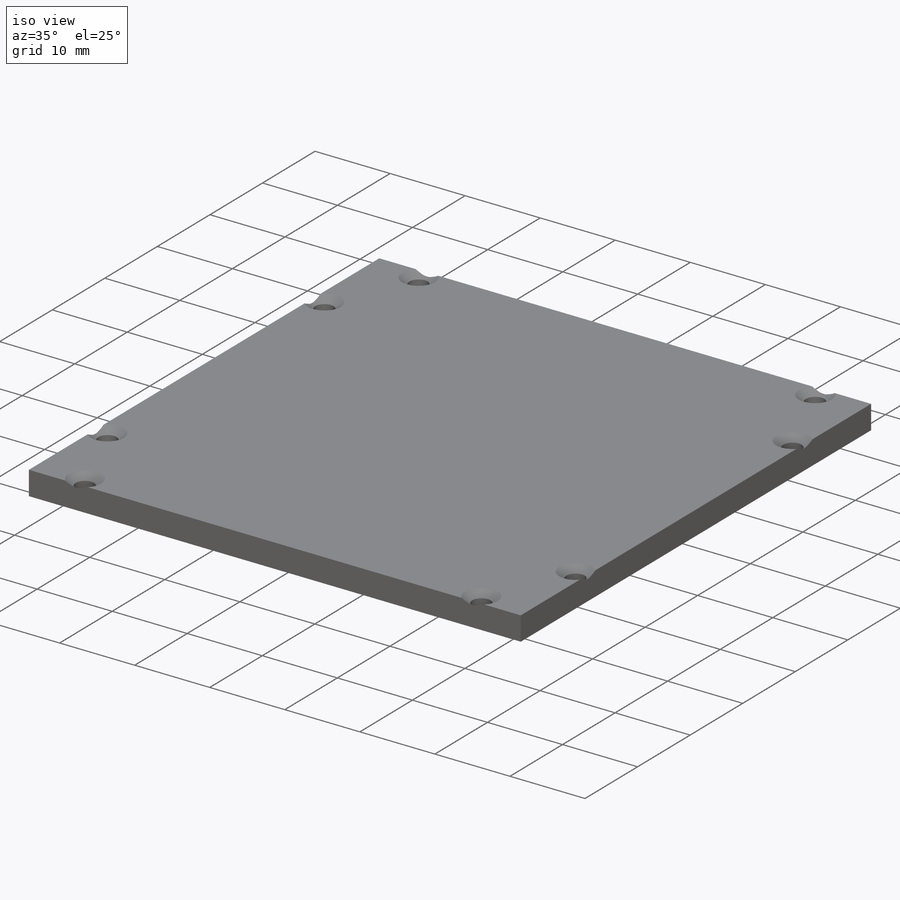
[diagram: iso view]
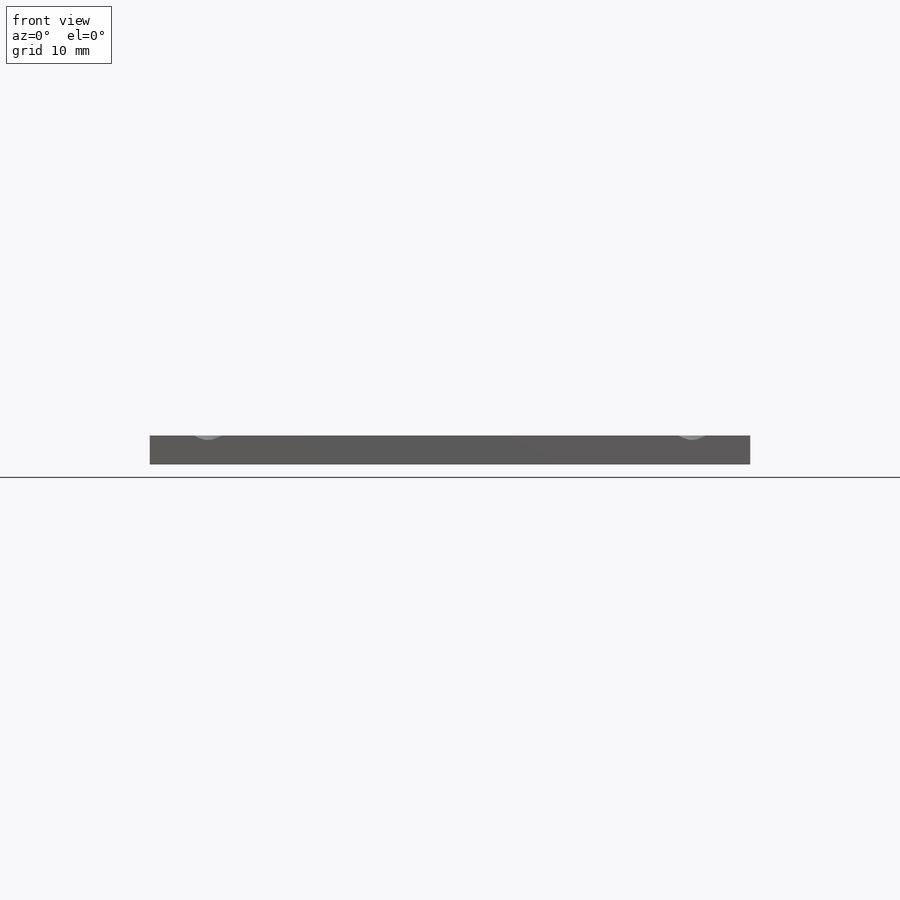
[diagram: front view]
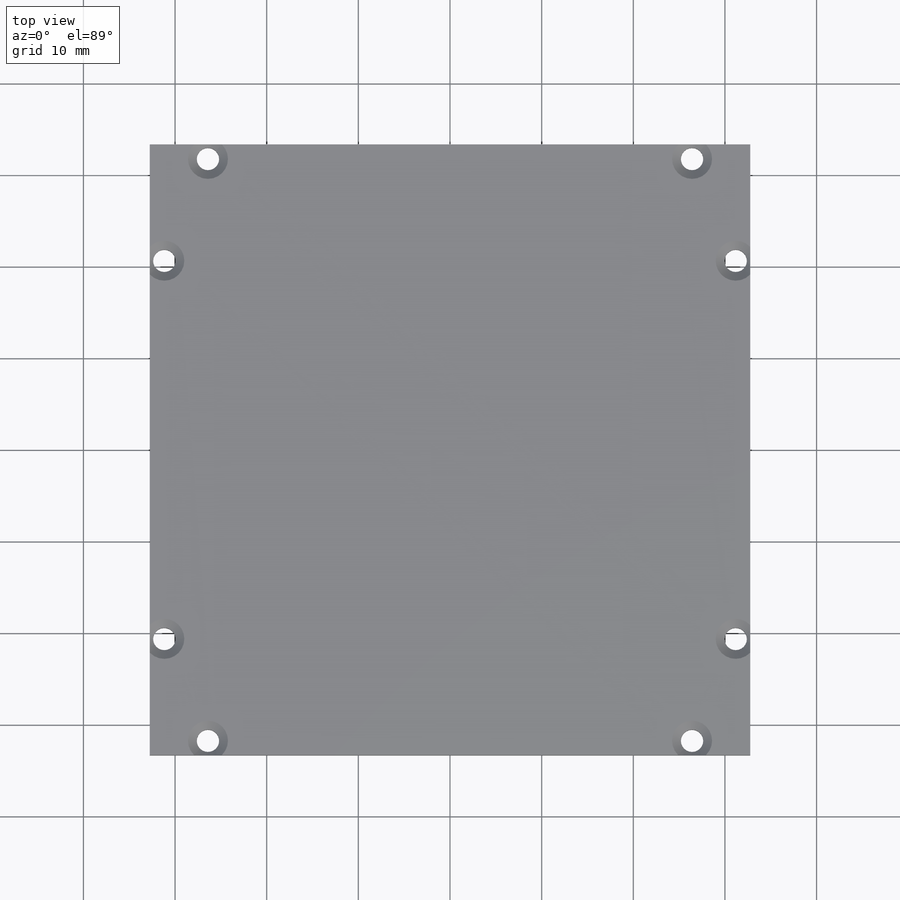
[diagram: top view]
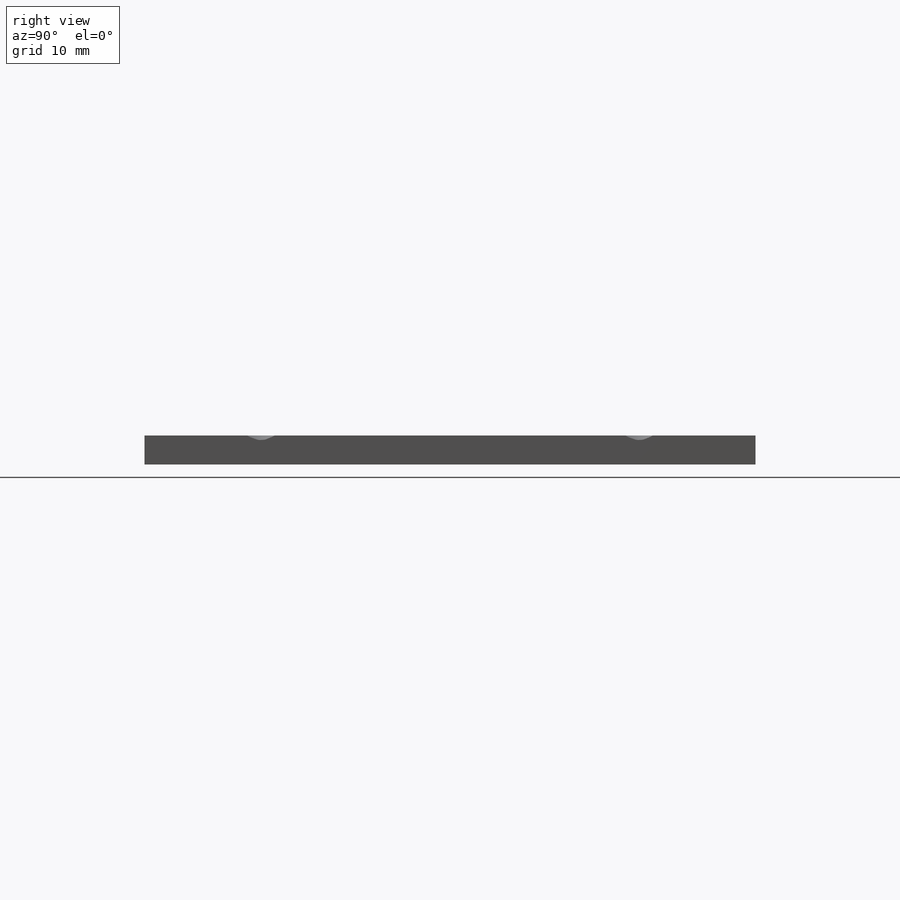
[diagram: right view]
SOLIDWORKS PART (.sldprt)
format: sldprt  version: not decoded by parser v0  size: 185,344 bytes
history: native  units: mm
features: sketch x3, material x1, extrude x1, hole x1 (+11 scaffold rows collapsed)
feature tree (17):
  scaffold x11  (default folders/planes/origin — collapsed)
  material  "Delrin"
  sketch  "Sketch1"  dims[D1=65.532mm D2=32.766mm D3=66.675mm D4=33.3375mm]
  extrude  "Extrude1"  Depth=3.175mm
  hole  "CSK for #2 Flat Head Machine Screw (100)1"  Diameter=2.4384mm Depth=3.175mm
  sketch  "3DSketch1"  dims[c1.D1=6.35mm c1.D2=6.35mm c1.D3=1.5875mm c1.D4=1.5875mm c1.D5=1.5875mm c1.D6=1.5875mm c1.D7=1.5875mm c1.D8=1.5875mm c1.D9=1.5875mm c1.D10=1.5875mm c1.D11=6.35mm c1.D12=6.35mm c1.D13=0.0mm c2.D13=12.7mm c2.D14=12.7mm c2.D15=12.7mm c2.D16=12.7mm]
  sketch  "Sketch2"  dims[hole-wizard template sketch: 59 standard entries collapsed; hole parameters above]
decode coverage: 5 of 5 modeling features carry decoded parameters
note: ~ marks probable driven/reference dimensions
note: suppression state not decoded; provenance and decode notes live in map.json
